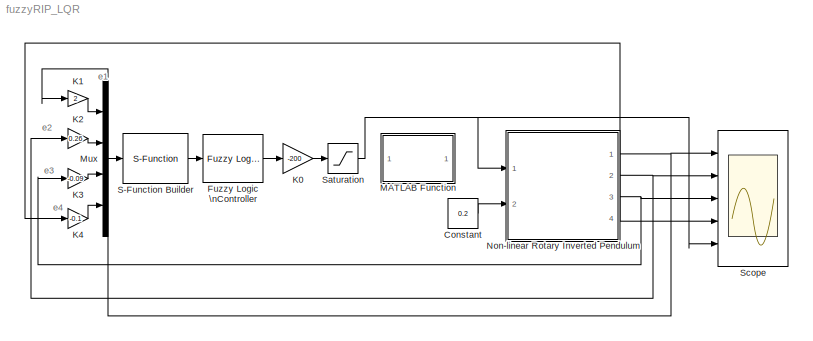
MODEL fuzzyRIP_LQR
KIND model
CONFIG StopFcn = subplot(3,1,1);\nplot(Data.time, Data.signals(1,1).values,'-r','LineWidth',1.5)\nlegend('alpha');\ngrid;\nylabel('alpha [rad]');\ntitle ('FuzzyController');\nsubplot(3,1,2);\nplot(Data.time, Data.signals(1,3).values,'-b','LineWidth',1.5)\nlegend('theta');\ngrid;\nylabel('theta [rad]');\nsubplot(3,1,3);\nplot(Data.time, Data.signals(1,5).values,'-g','LineWidth',1.5)\nlegend('Voltage');\ngrid;\nylab...<+18ch>
BLOCK [Constant] Constant
  SID = 1
  Value = 0.2
BLOCK [Reference] Fuzzy Logic \nController  REF=fuzblock/Fuzzy Logic \nController  (lib defined in mdl_858b3b3e7478)
  Ports = [1, 1]
  SID = 2
  SourceBlock = fuzblock/Fuzzy Logic \nController
  SourceType = FIS
  fis = 'RIPfuzzyMam5.fis'
BLOCK [Gain] K0
  Gain = -200
  OutDataTypeStr = Inherit: Inherit via internal rule
  ParamDataTypeStr = Inherit: Inherit via internal rule
  SID = 30
  SaturateOnIntegerOverflow = off
BLOCK [Gain] K1
  Gain = 2
  OutDataTypeStr = Inherit: Inherit via internal rule
  ParamDataTypeStr = Inherit: Inherit via internal rule
  SID = 34
  SaturateOnIntegerOverflow = off
BLOCK [Gain] K2
  Gain = 0.26
  OutDataTypeStr = Inherit: Inherit via internal rule
  ParamDataTypeStr = Inherit: Inherit via internal rule
  SID = 33
  SaturateOnIntegerOverflow = off
BLOCK [Gain] K3
  Gain = -0.09
  OutDataTypeStr = Inherit: Inherit via internal rule
  ParamDataTypeStr = Inherit: Inherit via internal rule
  SID = 32
  SaturateOnIntegerOverflow = off
BLOCK [Gain] K4
  Gain = -0.1
  OutDataTypeStr = Inherit: Inherit via internal rule
  ParamDataTypeStr = Inherit: Inherit via internal rule
  SID = 31
  SaturateOnIntegerOverflow = off
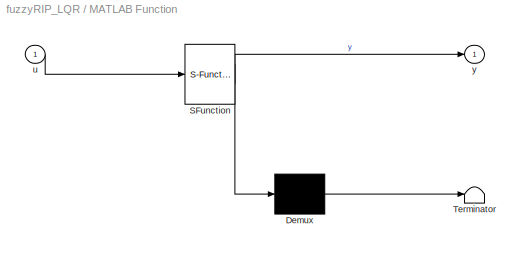
BLOCK [SubSystem] MATLAB Function
  ErrorFcn = Stateflow.Translate.translate
  FunctionWithSeparateData = off
  MaskHideContents = off
  MinAlgLoopOccurrences = off
  Opaque = off
  PermitHierarchicalResolution = ExplicitOnly
  Ports = [1, 1]
  PropExecContextOutsideSubsystem = off
  RTWSystemCode = Auto
  RequestExecContextInheritance = off
  SFBlockType = MATLAB Function
  SID = 46
  TreatAsAtomicUnit = on
BLOCK [Demux] MATLAB Function/ Demux 
  Outputs = 1
  Ports = [1, 1]
  SID = 46::19
BLOCK [S-Function] MATLAB Function/ SFunction 
  EnableBusSupport = on
  FunctionName = sf_sfun
  PortCounts = [1 2]
  Ports = [1, 2]
  SID = 46::18
  Tag = Stateflow S-Function fuzzyRIP_LQR 2
BLOCK [Terminator] MATLAB Function/ Terminator 
  SID = 46::20
BLOCK [Inport] MATLAB Function/u
  IconDisplay = Port number
  SID = 46::1
BLOCK [Outport] MATLAB Function/y
  IconDisplay = Port number
  SID = 46::5
BLOCK [Mux] Mux
  DisplayOption = bar
  Ports = [4, 1]
  SID = 4
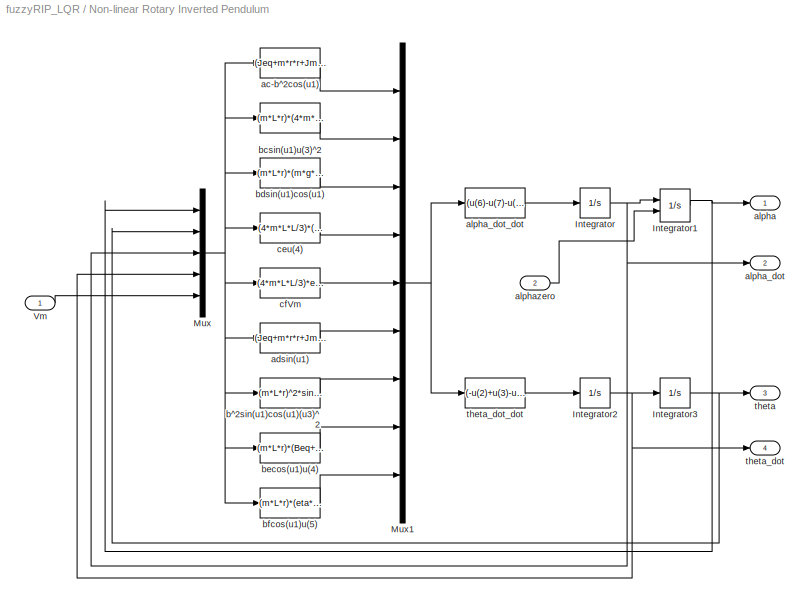
BLOCK [SubSystem] Non-linear Rotary Inverted Pendulum
  FunctionWithSeparateData = off
  MaskHideContents = off
  MinAlgLoopOccurrences = off
  Opaque = off
  Ports = [2, 4]
  PropExecContextOutsideSubsystem = off
  RTWSystemCode = Auto
  RequestExecContextInheritance = off
  SID = 5
BLOCK [Integrator] Non-linear Rotary Inverted Pendulum/Integrator
  LowerSaturationLimit = -pi/18
  Ports = [1, 1]
  SID = 8
  UpperSaturationLimit = pi/18
BLOCK [Integrator] Non-linear Rotary Inverted Pendulum/Integrator1
  InitialConditionSource = external
  LowerSaturationLimit = -pi/18
  Ports = [2, 1]
  SID = 9
  UpperSaturationLimit = pi/18
BLOCK [Integrator] Non-linear Rotary Inverted Pendulum/Integrator2
  Ports = [1, 1]
  SID = 10
BLOCK [Integrator] Non-linear Rotary Inverted Pendulum/Integrator3
  LowerSaturationLimit = -2
  Ports = [1, 1]
  SID = 11
  UpperSaturationLimit = 2
BLOCK [Mux] Non-linear Rotary Inverted Pendulum/Mux
  DisplayOption = bar
  Inputs = 5
  Ports = [5, 1]
  SID = 12
BLOCK [Mux] Non-linear Rotary Inverted Pendulum/Mux1
  DisplayOption = bar
  Inputs = 9
  Ports = [9, 1]
  SID = 13
BLOCK [Inport] Non-linear Rotary Inverted Pendulum/Vm
  IconDisplay = Port number
  SID = 6
BLOCK [Fcn] Non-linear Rotary Inverted Pendulum/ac-b^2cos(u1)
  Expr = (Jeq+m*r*r+Jm)*(4*m*L*L/3)-(m*L*r)^2*cos(u(1))
  SID = 14
BLOCK [Fcn] Non-linear Rotary Inverted Pendulum/adsin(u1)
  Expr = (Jeq+m*r*r+Jm)*(m*g*L)*sin(u(1))
  SID = 15
BLOCK [Outport] Non-linear Rotary Inverted Pendulum/alpha
  IconDisplay = Port number
  SID = 25
BLOCK [Outport] Non-linear Rotary Inverted Pendulum/alpha_dot
  IconDisplay = Port number
  Port = 2
  SID = 26
BLOCK [Fcn] Non-linear Rotary Inverted Pendulum/alpha_dot_dot
  Expr = (u(6)-u(7)-u(8)+u(9))/u(1)
  SID = 16
BLOCK [Inport] Non-linear Rotary Inverted Pendulum/alphazero
  IconDisplay = Port number
  Port = 2
  SID = 7
BLOCK [Fcn] Non-linear Rotary Inverted Pendulum/b^2sin(u1)cos(u1)(u3)^2
  Expr = (m*L*r)^2*sin(u(1))*cos(u(1))*(u(3))^2
  SID = 17
BLOCK [Fcn] Non-linear Rotary Inverted Pendulum/bcsin(u1)u(3)^2
  Expr = (m*L*r)*(4*m*L*L/3)*sin(u(1))*u(3)*u(3)
  SID = 18
BLOCK [Fcn] Non-linear Rotary Inverted Pendulum/bdsin(u1)cos(u1)
  Expr = (m*L*r)*(m*g*L)*sin(u(1))*cos(u(1))
  SID = 19
BLOCK [Fcn] Non-linear Rotary Inverted Pendulum/becos(u1)u(4)
  Expr = (m*L*r)*(Beq+eta*Kt*Km/Rm)*cos(u(1))*u(4)
  SID = 20
BLOCK [Fcn] Non-linear Rotary Inverted Pendulum/bfcos(u1)u(5)
  Expr = (m*L*r)*(eta*Kt/Rm)*cos(u(1))*u(5)
  SID = 21
BLOCK [Fcn] Non-linear Rotary Inverted Pendulum/ceu(4)
  Expr = (4*m*L*L/3)*(Beq+eta*Kt*Km/Rm)*u(4)
  SID = 22
BLOCK [Fcn] Non-linear Rotary Inverted Pendulum/cfVm
  Expr = (4*m*L*L/3)*eta*Kt/Rm*u(5)
  SID = 23
BLOCK [Outport] Non-linear Rotary Inverted Pendulum/theta
  IconDisplay = Port number
  Port = 3
  SID = 27
BLOCK [Outport] Non-linear Rotary Inverted Pendulum/theta_dot
  IconDisplay = Port number
  Port = 4
  SID = 28
BLOCK [Fcn] Non-linear Rotary Inverted Pendulum/theta_dot_dot
  Expr = (-u(2)+u(3)-u(4)+u(5))/u(1)
  SID = 24
BLOCK [S-Function] S-Function Builder
  CopyFcn = set_param(gcbh,'LinkStatus','none')
  EnableBusSupport = off
  FunctionName = convert
  InitFcn = try, set_param(gcb,'FunctionName','convert'), end
  OpenFcn = sfunctionwizard(gcbh)
  Ports = [1, 1]
  PreSaveFcn = try, set_param(gcb,'FunctionName','convert'), end
  SFunctionModules = convert_wrapper
  SID = 38
  WizardData = DataTag0
BLOCK [Saturate] Saturation
  InputPortMap = u0
  LowerLimit = -24
  Ports = [1, 1]
  SID = 43
  UpperLimit = 24
BLOCK [Scope] Scope
  DataFormat = StructureWithTime
  Floating = off
  LimitDataPoints = off
  NumInputPorts = 5
  Ports = [5]
  SID = 29
  SampleTime = 0
  SaveName = Data
  SaveToWorkspace = on
  ShowLegends = off
  YMax = -29.78~1500~4.5e+08~1.1e+09~5
  YMin = -29.91~-1500~5e+07~1e+08~-5
ANNOTATION (root): e1
ANNOTATION (root): e2
ANNOTATION (root): e3
ANNOTATION (root): e4
LINE Constant:1 -> Non-linear Rotary Inverted Pendulum:2
LINE Fuzzy Logic \nController:1 -> K0:1
LINE K0:1 -> Saturation:1
LINE K1:1 -> Mux:1
LINE K2:1 -> Mux:2
LINE K3:1 -> Mux:3
LINE K4:1 -> Mux:4
LINE MATLAB Function/ Demux :1 -> MATLAB Function/ Terminator :1
LINE MATLAB Function/ SFunction :1 -> MATLAB Function/ Demux :1
LINE MATLAB Function/ SFunction :2 -> MATLAB Function/y:1
LINE MATLAB Function/u:1 -> MATLAB Function/ SFunction :1
LINE Mux:1 -> S-Function Builder:1
NET Non-linear Rotary Inverted Pendulum/Integrator1:1 -> Non-linear Rotary Inverted Pendulum/Mux:1, Non-linear Rotary Inverted Pendulum/alpha:1
NET Non-linear Rotary Inverted Pendulum/Integrator2:1 -> Non-linear Rotary Inverted Pendulum/Integrator3:1, Non-linear Rotary Inverted Pendulum/Mux:4, Non-linear Rotary Inverted Pendulum/theta_dot:1
NET Non-linear Rotary Inverted Pendulum/Integrator3:1 -> Non-linear Rotary Inverted Pendulum/Mux:2, Non-linear Rotary Inverted Pendulum/theta:1
NET Non-linear Rotary Inverted Pendulum/Integrator:1 -> Non-linear Rotary Inverted Pendulum/Integrator1:1, Non-linear Rotary Inverted Pendulum/Mux:3, Non-linear Rotary Inverted Pendulum/alpha_dot:1
NET Non-linear Rotary Inverted Pendulum/Mux1:1 -> Non-linear Rotary Inverted Pendulum/alpha_dot_dot:1, Non-linear Rotary Inverted Pendulum/theta_dot_dot:1
NET Non-linear Rotary Inverted Pendulum/Mux:1 -> Non-linear Rotary Inverted Pendulum/ac-b^2cos(u1):1, Non-linear Rotary Inverted Pendulum/adsin(u1):1, Non-linear Rotary Inverted Pendulum/b^2sin(u1)cos(u1)(u3)^2:1, Non-linear Rotary Inverted Pendulum/bcsin(u1)u(3)^2:1, Non-linear Rotary Inverted Pendulum/bdsin(u1)cos(u1):1, Non-linear Rotary Inverted Pendulum/becos(u1)u(4):1, Non-linear Rotary Inverted Pendulum/bfcos(u1)u(5):1, Non-linear Rotary Inverted Pendulum/ceu(4):1, Non-linear Rotary Inverted Pendulum/cfVm:1
LINE Non-linear Rotary Inverted Pendulum/Vm:1 -> Non-linear Rotary Inverted Pendulum/Mux:5
LINE Non-linear Rotary Inverted Pendulum/ac-b^2cos(u1):1 -> Non-linear Rotary Inverted Pendulum/Mux1:1
LINE Non-linear Rotary Inverted Pendulum/adsin(u1):1 -> Non-linear Rotary Inverted Pendulum/Mux1:6
LINE Non-linear Rotary Inverted Pendulum/alpha_dot_dot:1 -> Non-linear Rotary Inverted Pendulum/Integrator:1
LINE Non-linear Rotary Inverted Pendulum/alphazero:1 -> Non-linear Rotary Inverted Pendulum/Integrator1:2
LINE Non-linear Rotary Inverted Pendulum/b^2sin(u1)cos(u1)(u3)^2:1 -> Non-linear Rotary Inverted Pendulum/Mux1:7
LINE Non-linear Rotary Inverted Pendulum/bcsin(u1)u(3)^2:1 -> Non-linear Rotary Inverted Pendulum/Mux1:2
LINE Non-linear Rotary Inverted Pendulum/bdsin(u1)cos(u1):1 -> Non-linear Rotary Inverted Pendulum/Mux1:3
LINE Non-linear Rotary Inverted Pendulum/becos(u1)u(4):1 -> Non-linear Rotary Inverted Pendulum/Mux1:8
LINE Non-linear Rotary Inverted Pendulum/bfcos(u1)u(5):1 -> Non-linear Rotary Inverted Pendulum/Mux1:9
LINE Non-linear Rotary Inverted Pendulum/ceu(4):1 -> Non-linear Rotary Inverted Pendulum/Mux1:4
LINE Non-linear Rotary Inverted Pendulum/cfVm:1 -> Non-linear Rotary Inverted Pendulum/Mux1:5
LINE Non-linear Rotary Inverted Pendulum/theta_dot_dot:1 -> Non-linear Rotary Inverted Pendulum/Integrator2:1
NET Non-linear Rotary Inverted Pendulum:1 -> K1:1, Scope:1
NET Non-linear Rotary Inverted Pendulum:2 -> K2:1, Scope:2
NET Non-linear Rotary Inverted Pendulum:3 -> K3:1, Scope:3
NET Non-linear Rotary Inverted Pendulum:4 -> K4:1, Scope:4
LINE S-Function Builder:1 -> Fuzzy Logic \nController:1
NET Saturation:1 -> Non-linear Rotary Inverted Pendulum:1, Scope:5
note: NET lines group one-source signal fan-out (src -> all destinations, sorted); 1:1 wires keep LINE
CHART MATLAB Function states=1 transitions=1
  STATE_LABEL 'eML_blk_kernel()'
